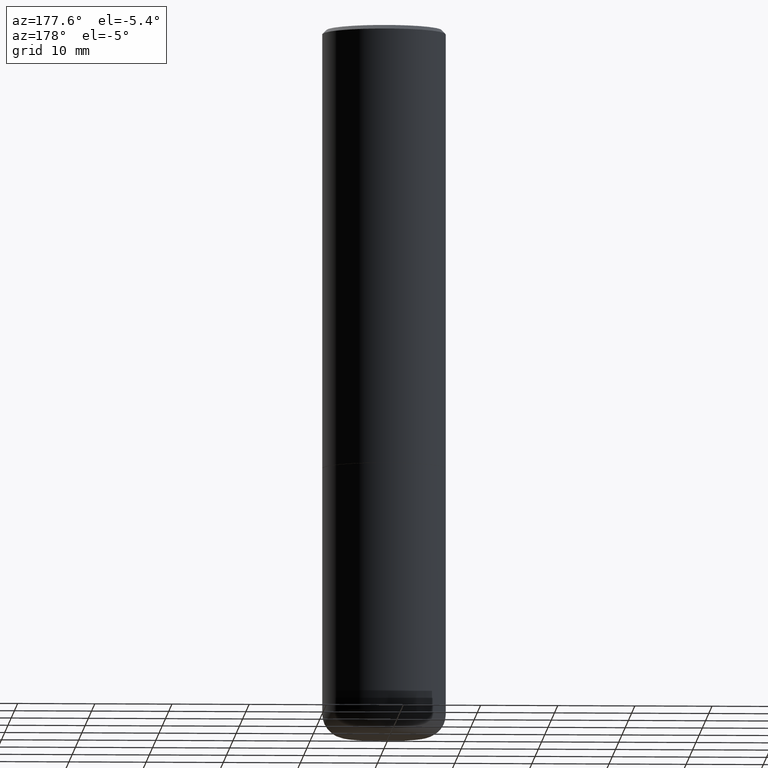
[diagram: clean part render]
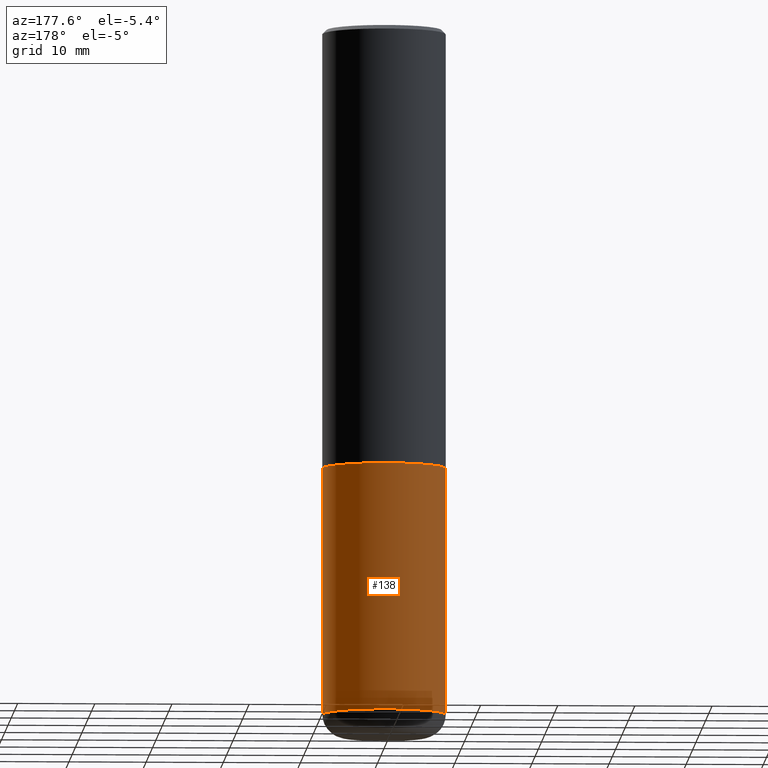
[diagram: same view with one face highlighted and labeled with its STEP entity id]
A machine part, auxiliary view. The second image highlights one B-rep face of the part: STEP entity #138.
In plain terms, the highlighted cylindrical surface (partial cylindrical patch) has radius 7.9997 mm, axis along (-0, 0, 1).
Its self-contained STEP definition (entity closure, byte-faithful):
#9 = CARTESIAN_POINT ( 'NONE',  ( 0.3149500000000000077, -2.199284095337289871E-15, 1.535751875536930130E-29 ) ) ;
#10 = DIRECTION ( 'NONE',  ( 1.000000000000000000, -6.982962677686266711E-15, 4.876176775795936353E-29 ) ) ;
#20 = CARTESIAN_POINT ( 'NONE',  ( 5.487632001079445967E-29, -7.834884124364017250E-15, -2.243999999999999773 ) ) ;
#37 = ORIENTED_EDGE ( 'NONE', *, *, #296, .F. ) ;
#50 = CARTESIAN_POINT ( 'NONE',  ( -0.3149499999999998967, -9.995947116896063452E-15, -3.503899999999999793 ) ) ;
#65 = EDGE_LOOP ( 'NONE', ( #298, #232, #399, #37 ) ) ;
#79 = VECTOR ( 'NONE', #114, 39.37007874015748143 ) ;
#106 = DIRECTION ( 'NONE',  ( -2.445468806185136597E-29, 3.491481338843145583E-15, 1.000000000000000000 ) ) ;
#114 = DIRECTION ( 'NONE',  ( -2.445468806185136877E-29, 3.491481338843145188E-15, 1.000000000000000000 ) ) ;
#115 = AXIS2_PLACEMENT_3D ( 'NONE', #184, #182, #10 ) ;
#131 = CARTESIAN_POINT ( 'NONE',  ( 0.3149499999999998967, -1.443308555850978615E-14, -3.503899999999999793 ) ) ;
#138 = ADVANCED_FACE ( 'NONE', ( #281 ), #395, .T. ) ;
#146 = CIRCLE ( 'NONE', #353, 0.3149500000000000077 ) ;
#147 = DIRECTION ( 'NONE',  ( 1.000000000000000000, -6.982962677686263555E-15, 0.000000000000000000 ) ) ;
#148 = DIRECTION ( 'NONE',  ( 1.000000000000000000, -6.982962677686266711E-15, 0.000000000000000000 ) ) ;
#161 = DIRECTION ( 'NONE',  ( -2.445468806185136877E-29, 3.491481338843145188E-15, 1.000000000000000000 ) ) ;
#182 = DIRECTION ( 'NONE',  ( -2.445468806185136597E-29, 3.491481338843145583E-15, 1.000000000000000000 ) ) ;
#184 = CARTESIAN_POINT ( 'NONE',  ( 0.000000000000000000, 0.000000000000000000, 0.000000000000000000 ) ) ;
#191 = CARTESIAN_POINT ( 'NONE',  ( 0.3149500000000000077, -1.003416821970130712E-14, -2.243999999999999773 ) ) ;
#193 = EDGE_CURVE ( 'NONE', #235, #338, #146, .T. ) ;
#199 = LINE ( 'NONE', #414, #315 ) ;
#202 = VERTEX_POINT ( 'NONE', #131 ) ;
#215 = DIRECTION ( 'NONE',  ( -2.445468806185136597E-29, 3.491481338843145583E-15, 1.000000000000000000 ) ) ;
#229 = CARTESIAN_POINT ( 'NONE',  ( -0.3149500000000000077, -7.796488447491823147E-15, -2.243999999999999773 ) ) ;
#232 = ORIENTED_EDGE ( 'NONE', *, *, #330, .T. ) ;
#235 = VERTEX_POINT ( 'NONE', #191 ) ;
#254 = EDGE_CURVE ( 'NONE', #202, #303, #378, .T. ) ;
#274 = CARTESIAN_POINT ( 'NONE',  ( 8.568678149992099474E-29, -1.223380146317249786E-14, -3.503899999999999793 ) ) ;
#281 = FACE_OUTER_BOUND ( 'NONE', #65, .T. ) ;
#296 = EDGE_CURVE ( 'NONE', #202, #235, #397, .T. ) ;
#298 = ORIENTED_EDGE ( 'NONE', *, *, #254, .T. ) ;
#303 = VERTEX_POINT ( 'NONE', #50 ) ;
#315 = VECTOR ( 'NONE', #161, 39.37007874015748143 ) ;
#330 = EDGE_CURVE ( 'NONE', #303, #338, #199, .T. ) ;
#338 = VERTEX_POINT ( 'NONE', #229 ) ;
#353 = AXIS2_PLACEMENT_3D ( 'NONE', #20, #215, #148 ) ;
#378 = CIRCLE ( 'NONE', #415, 0.3149500000000000077 ) ;
#395 = CYLINDRICAL_SURFACE ( 'NONE', #115, 0.3149500000000000077 ) ;
#397 = LINE ( 'NONE', #9, #79 ) ;
#399 = ORIENTED_EDGE ( 'NONE', *, *, #193, .F. ) ;
#414 = CARTESIAN_POINT ( 'NONE',  ( -0.3149500000000000077, 2.237854346276435590E-15, -1.549218606675782676E-29 ) ) ;
#415 = AXIS2_PLACEMENT_3D ( 'NONE', #274, #106, #147 ) ;